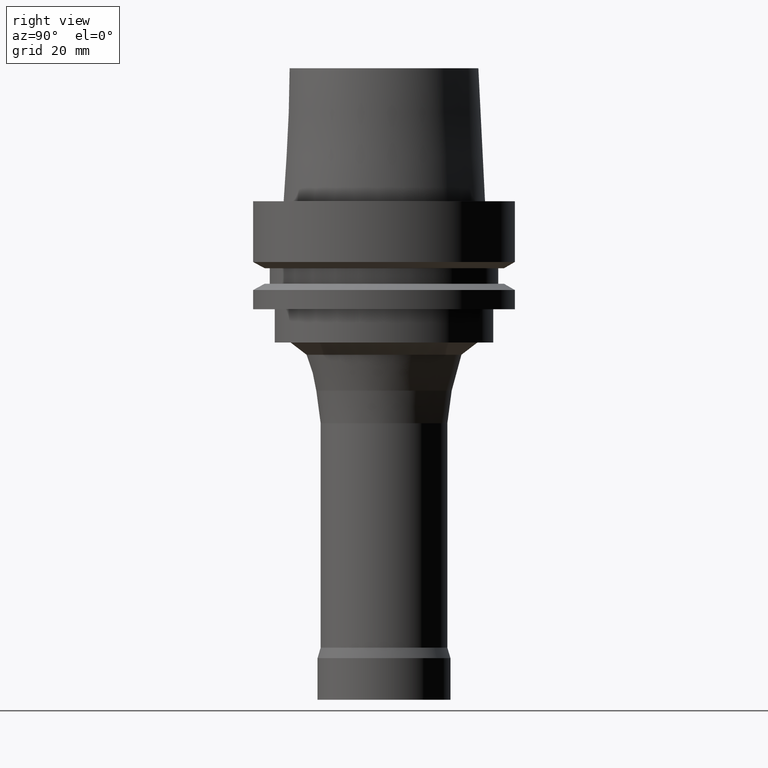
[diagram: clean part render]
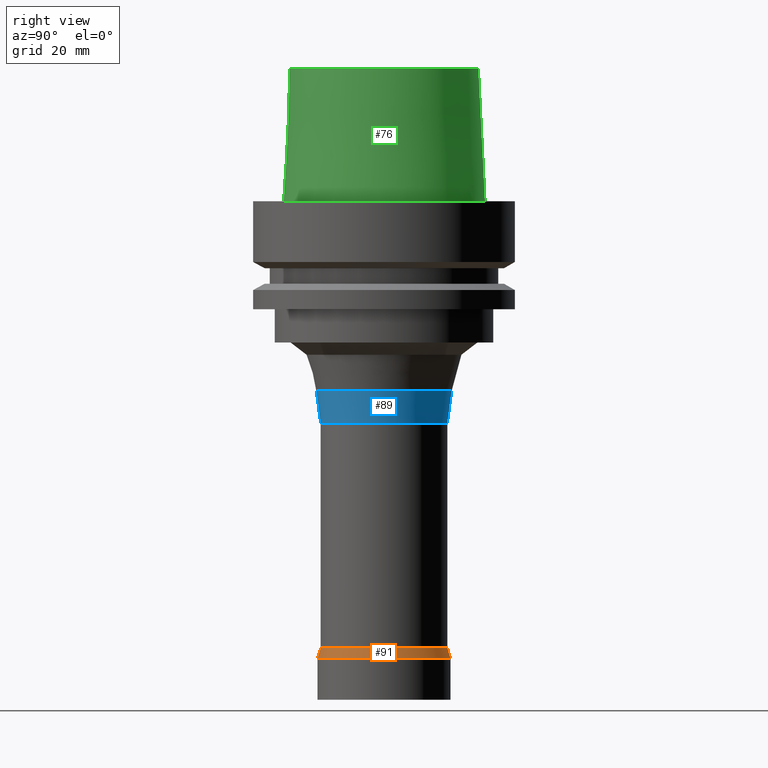
[diagram: same view with three faces highlighted in distinct colors, each labeled with its STEP entity id]
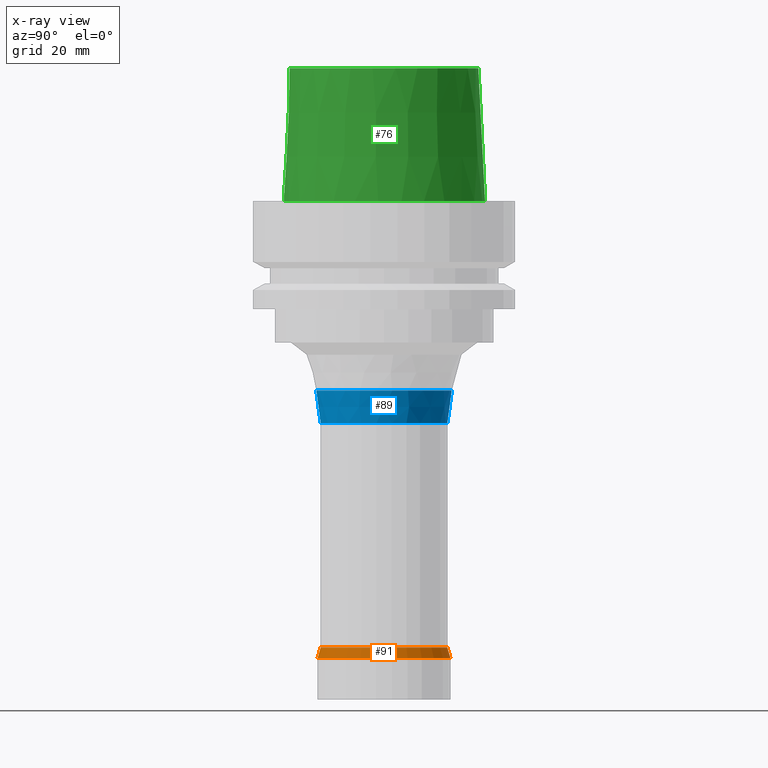
[diagram: x-ray of the same camera — body ghosted, the three highlighted faces saturated]
A machine part, right view with three faces highlighted in distinct colors.
The next image is the same camera in x-ray (body ghosted, the three faces saturated) — at least one of them is partly hidden behind the body in this view.
Their STEP definitions:

[orange] entity #91 — the highlighted conical surface has half-angle 16.494 deg.
#91=ADVANCED_FACE('',(#143,#144),#145,.T.);
#143=FACE_BOUND('',#201,.T.);
#144=FACE_BOUND('',#202,.T.);
#145=CONICAL_SURFACE('',#203,15.625,0.287865885212124);
#201=EDGE_LOOP('',(#291));
#202=EDGE_LOOP('',(#292));
#203=AXIS2_PLACEMENT_3D('',#293,#294,#295);
#291=ORIENTED_EDGE('',*,*,#327,.F.);
#292=ORIENTED_EDGE('',*,*,#326,.T.);
#293=CARTESIAN_POINT('',(6.65800624731675E-015,1.33160124946335E-014,-108.73349364));
#294=DIRECTION('',(6.12323399573677E-017,1.22464679914735E-016,-1.0));
#295=DIRECTION('',(-1.23259516440783E-032,1.0,1.22464679914735E-016));
#326=EDGE_CURVE('',#361,#361,#362,.T.);
#327=EDGE_CURVE('',#363,#363,#364,.T.);
#361=VERTEX_POINT('',#399);
#362=CIRCLE('',#400,15.25);
#363=VERTEX_POINT('',#401);
#364=CIRCLE('',#402,16.0);
#399=CARTESIAN_POINT('',(6.58045509932307E-015,15.25,-107.46698728));
#400=AXIS2_PLACEMENT_3D('',#453,#454,#455);
#401=CARTESIAN_POINT('',(6.73555739531044E-015,16.0,-110.0));
#402=AXIS2_PLACEMENT_3D('',#456,#457,#458);
#453=CARTESIAN_POINT('',(6.58045509932307E-015,1.31609101986461E-014,-107.46698728));
#454=DIRECTION('',(6.12323399573677E-017,1.22464679914735E-016,-1.0));
#455=DIRECTION('',(-1.23259516440783E-032,1.0,1.22464679914735E-016));
#456=CARTESIAN_POINT('',(6.73555739531044E-015,1.34711147906209E-014,-110.0));
#457=DIRECTION('',(6.12323399573677E-017,1.22464679914735E-016,-1.0));
#458=DIRECTION('',(-1.23259516440783E-032,1.0,1.22464679914735E-016));

[blue] entity #89 — the highlighted conical surface has half-angle 7.587 deg.
#89=ADVANCED_FACE('',(#137,#138),#139,.T.);
#137=FACE_BOUND('',#195,.T.);
#138=FACE_BOUND('',#196,.T.);
#139=CONICAL_SURFACE('',#197,15.77302391,0.132425070851554);
#195=EDGE_LOOP('',(#281));
#196=EDGE_LOOP('',(#282));
#197=AXIS2_PLACEMENT_3D('',#283,#284,#285);
#281=ORIENTED_EDGE('',*,*,#325,.F.);
#282=ORIENTED_EDGE('',*,*,#324,.T.);
#283=CARTESIAN_POINT('',(3.03220521964311E-015,6.06441043928622E-015,-49.51966921));
#284=DIRECTION('',(-6.12323399573677E-017,-1.22464679914735E-016,1.0));
#285=DIRECTION('',(-1.23259516440783E-032,1.0,1.22464679914735E-016));
#324=EDGE_CURVE('',#357,#357,#358,.T.);
#325=EDGE_CURVE('',#359,#359,#360,.T.);
#357=VERTEX_POINT('',#395);
#358=CIRCLE('',#396,16.29604782);
#359=VERTEX_POINT('',#397);
#360=CIRCLE('',#398,15.25);
#395=CARTESIAN_POINT('',(2.79177830010061E-015,16.29604782,-45.59319964));
#396=AXIS2_PLACEMENT_3D('',#447,#448,#449);
#397=CARTESIAN_POINT('',(3.27263213918561E-015,15.25,-53.44613878));
#398=AXIS2_PLACEMENT_3D('',#450,#451,#452);
#447=CARTESIAN_POINT('',(2.79177830010061E-015,5.58355660020122E-015,-45.59319964));
#448=DIRECTION('',(6.12323399573676E-017,1.22464679914735E-016,-1.0));
#449=DIRECTION('',(-1.23259516440783E-032,1.0,1.22464679914735E-016));
#450=CARTESIAN_POINT('',(3.27263213918561E-015,6.54526427837122E-015,-53.44613878));
#451=DIRECTION('',(6.12323399573677E-017,1.22464679914735E-016,-1.0));
#452=DIRECTION('',(-1.23259516440783E-032,1.0,1.22464679914735E-016));

[green] entity #76 — the highlighted conical surface has half-angle 2.862 deg.
#76=ADVANCED_FACE('',(#98,#99),#100,.T.);
#98=FACE_BOUND('',#156,.T.);
#99=FACE_BOUND('',#157,.T.);
#100=CONICAL_SURFACE('',#158,23.5149999985447,0.0499583958256321);
#156=EDGE_LOOP('',(#216));
#157=EDGE_LOOP('',(#217));
#158=AXIS2_PLACEMENT_3D('',#218,#219,#220);
#216=ORIENTED_EDGE('',*,*,#311,.F.);
#217=ORIENTED_EDGE('',*,*,#310,.T.);
#218=CARTESIAN_POINT('',(-9.79717439317883E-016,-1.95943487863576E-015,16.0));
#219=DIRECTION('',(6.12323399573676E-017,1.22464679914735E-016,-1.0));
#220=DIRECTION('',(-1.23259516440783E-032,1.0,1.22464679914735E-016));
#310=EDGE_CURVE('',#329,#329,#330,.T.);
#311=EDGE_CURVE('',#331,#331,#332,.T.);
#329=VERTEX_POINT('',#367);
#330=CIRCLE('',#368,22.7149999968815);
#331=VERTEX_POINT('',#369);
#332=CIRCLE('',#370,24.3150000002079);
#367=CARTESIAN_POINT('',(-1.95943487863577E-015,22.7149999968815,32.0));
#368=AXIS2_PLACEMENT_3D('',#405,#406,#407);
#369=CARTESIAN_POINT('',(-2.99705514228327E-031,24.3150000002079,2.97772869215225E-015));
#370=AXIS2_PLACEMENT_3D('',#408,#409,#410);
#405=CARTESIAN_POINT('',(-1.95943487863577E-015,-3.91886975727153E-015,32.0));
#406=DIRECTION('',(6.12323399573677E-017,1.22464679914735E-016,-1.0));
#407=DIRECTION('',(-1.23259516440783E-032,1.0,1.22464679914735E-016));
#408=CARTESIAN_POINT('',(0.0,0.0,0.0));
#409=DIRECTION('',(6.12323399573677E-017,1.08546795432774E-016,-1.0));
#410=DIRECTION('',(-1.14737270099915E-032,1.0,1.08546795432774E-016));